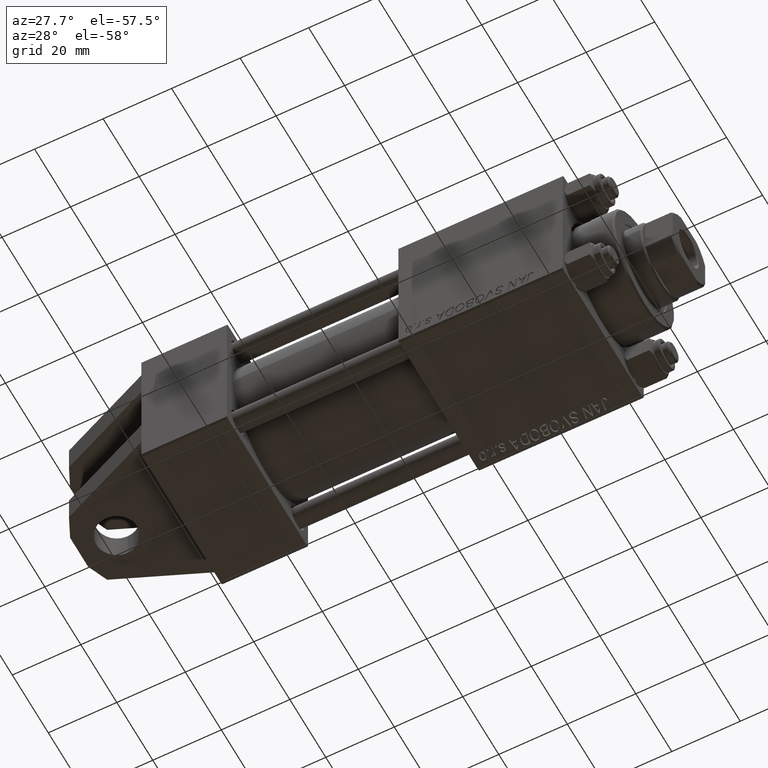
[diagram: clean part render]
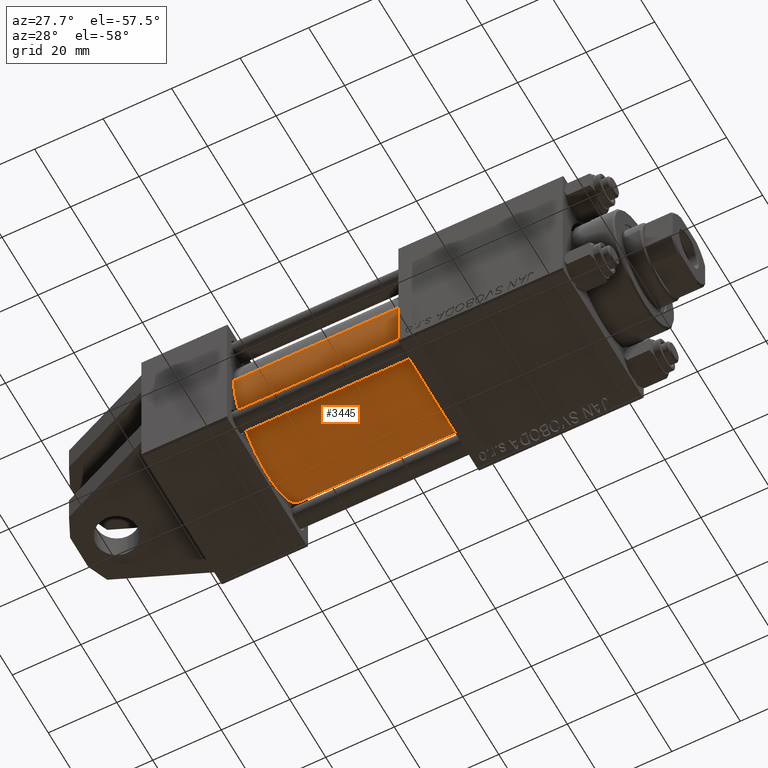
[diagram: same view with one face highlighted and labeled with its STEP entity id]
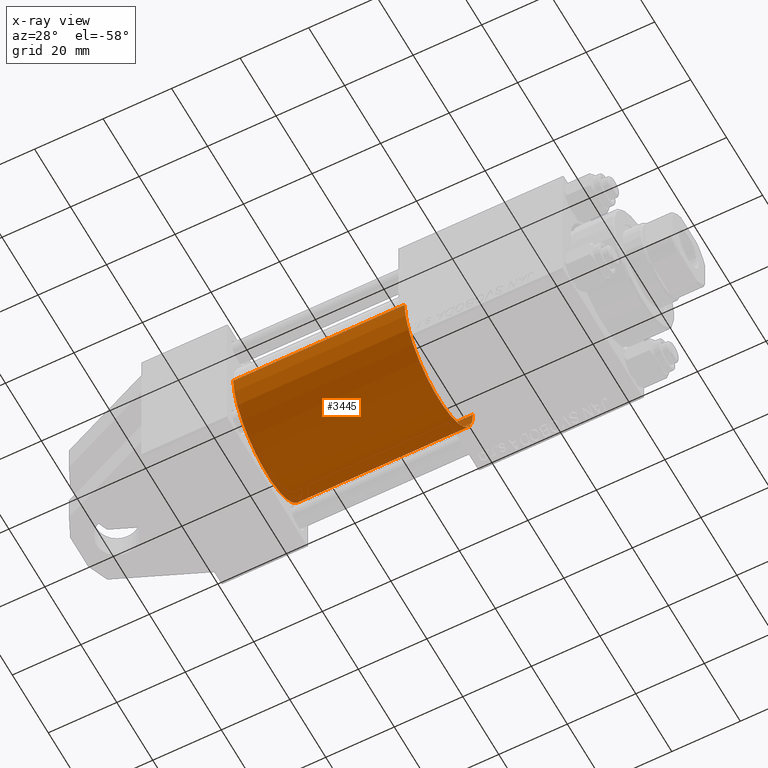
[diagram: x-ray of the same camera — body ghosted, the highlighted face saturated]
A machine part, auxiliary view. The second image highlights one B-rep face of the part: STEP entity #3445.
The next image is the same camera in x-ray: the body ghosted, the highlighted face saturated — about 0% of this face is hidden behind the body in this view.
In plain terms, the highlighted cylindrical surface (partial cylindrical patch) has radius 19 mm, axis along (-1, -0, 0).
Its self-contained STEP definition (entity closure, byte-faithful):
#3376 = LINE ( 'NONE', #41333, #3790 ) ;
#3445 = ADVANCED_FACE ( 'NONE', ( #46008 ), #7820, .T. ) ;
#3657 = ORIENTED_EDGE ( 'NONE', *, *, #45507, .T. ) ;
#3790 = VECTOR ( 'NONE', #44620, 1000.000000000000000 ) ;
#4041 = DIRECTION ( 'NONE',  ( -1.000000000000000000, -0.000000000000000000, -0.000000000000000000 ) ) ;
#5475 = EDGE_LOOP ( 'NONE', ( #42895, #38411, #3657, #41361 ) ) ;
#5536 = CARTESIAN_POINT ( 'NONE',  ( 25.00000000000000000, -3.469446951953614189E-15, 0.000000000000000000 ) ) ;
#7820 = CYLINDRICAL_SURFACE ( 'NONE', #38781, 19.00000000000000000 ) ;
#8373 = CIRCLE ( 'NONE', #11560, 19.00000000000000000 ) ;
#10658 = DIRECTION ( 'NONE',  ( 1.000000000000000000, 0.000000000000000000, 0.000000000000000000 ) ) ;
#11560 = AXIS2_PLACEMENT_3D ( 'NONE', #14449, #10658, #21987 ) ;
#13093 = LINE ( 'NONE', #44737, #44962 ) ;
#14449 = CARTESIAN_POINT ( 'NONE',  ( 75.00000000000001421, -3.469446951953614189E-15, 0.000000000000000000 ) ) ;
#15189 = EDGE_CURVE ( 'NONE', #18499, #41701, #3376, .T. ) ;
#18499 = VERTEX_POINT ( 'NONE', #47035 ) ;
#20804 = VERTEX_POINT ( 'NONE', #34015 ) ;
#21277 = CARTESIAN_POINT ( 'NONE',  ( 25.00000000000000000, -3.469446951953614189E-15, 19.00000000000000000 ) ) ;
#21987 = DIRECTION ( 'NONE',  ( 0.000000000000000000, 0.000000000000000000, -1.000000000000000000 ) ) ;
#23155 = CARTESIAN_POINT ( 'NONE',  ( 75.00000000000001421, -3.469446951953614189E-15, 0.000000000000000000 ) ) ;
#23644 = EDGE_CURVE ( 'NONE', #27956, #20804, #13093, .T. ) ;
#27956 = VERTEX_POINT ( 'NONE', #39117 ) ;
#28161 = DIRECTION ( 'NONE',  ( 1.000000000000000000, -0.000000000000000000, 0.000000000000000000 ) ) ;
#34015 = CARTESIAN_POINT ( 'NONE',  ( 25.00000000000000000, -1.142618033573643218E-15, -19.00000000000000000 ) ) ;
#34720 = DIRECTION ( 'NONE',  ( 0.000000000000000000, 0.000000000000000000, 1.000000000000000000 ) ) ;
#34931 = AXIS2_PLACEMENT_3D ( 'NONE', #5536, #28161, #40713 ) ;
#37191 = EDGE_CURVE ( 'NONE', #27956, #18499, #8373, .T. ) ;
#38153 = CIRCLE ( 'NONE', #34931, 19.00000000000000000 ) ;
#38411 = ORIENTED_EDGE ( 'NONE', *, *, #23644, .T. ) ;
#38781 = AXIS2_PLACEMENT_3D ( 'NONE', #23155, #4041, #34720 ) ;
#39117 = CARTESIAN_POINT ( 'NONE',  ( 75.00000000000001421, -1.142618033573643218E-15, -19.00000000000000000 ) ) ;
#40713 = DIRECTION ( 'NONE',  ( 0.000000000000000000, 0.000000000000000000, 1.000000000000000000 ) ) ;
#41333 = CARTESIAN_POINT ( 'NONE',  ( 75.00000000000001421, -3.469446951953614189E-15, 19.00000000000000000 ) ) ;
#41361 = ORIENTED_EDGE ( 'NONE', *, *, #15189, .F. ) ;
#41701 = VERTEX_POINT ( 'NONE', #21277 ) ;
#42895 = ORIENTED_EDGE ( 'NONE', *, *, #37191, .F. ) ;
#44620 = DIRECTION ( 'NONE',  ( -1.000000000000000000, -0.000000000000000000, -0.000000000000000000 ) ) ;
#44737 = CARTESIAN_POINT ( 'NONE',  ( 75.00000000000001421, -1.142618033573643218E-15, -19.00000000000000000 ) ) ;
#44962 = VECTOR ( 'NONE', #48257, 1000.000000000000000 ) ;
#45507 = EDGE_CURVE ( 'NONE', #20804, #41701, #38153, .T. ) ;
#46008 = FACE_OUTER_BOUND ( 'NONE', #5475, .T. ) ;
#47035 = CARTESIAN_POINT ( 'NONE',  ( 75.00000000000001421, -3.469446951953614189E-15, 19.00000000000000000 ) ) ;
#48257 = DIRECTION ( 'NONE',  ( -1.000000000000000000, -0.000000000000000000, -0.000000000000000000 ) ) ;